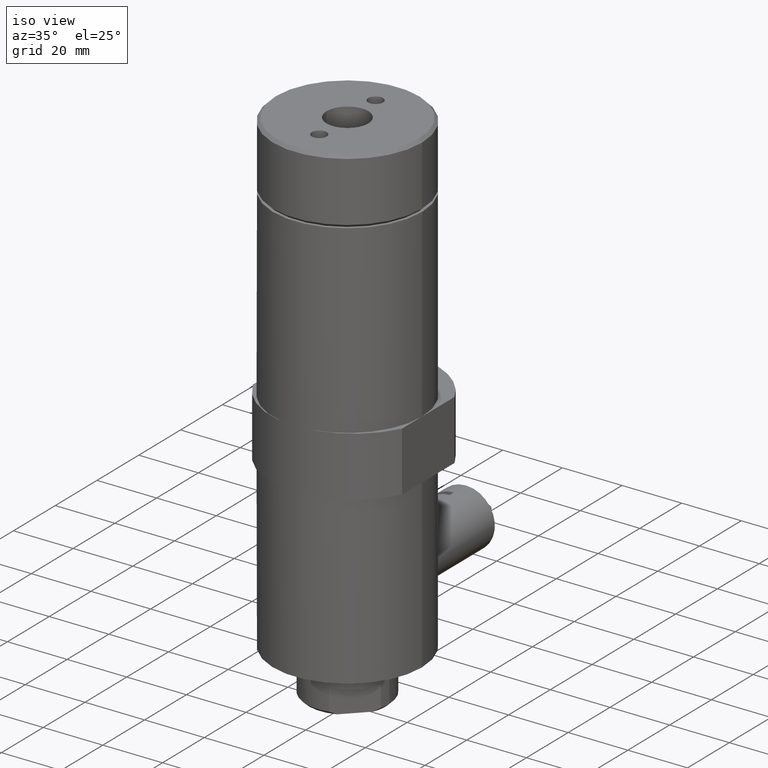
[diagram: clean part render]
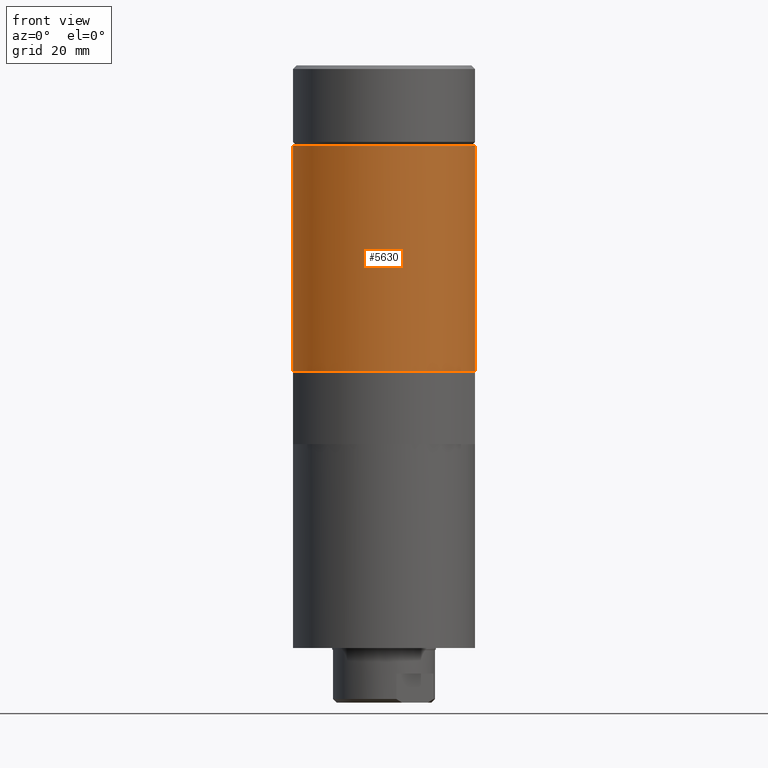
[diagram: tour spotlight — one face highlighted and labeled with its STEP entity id]
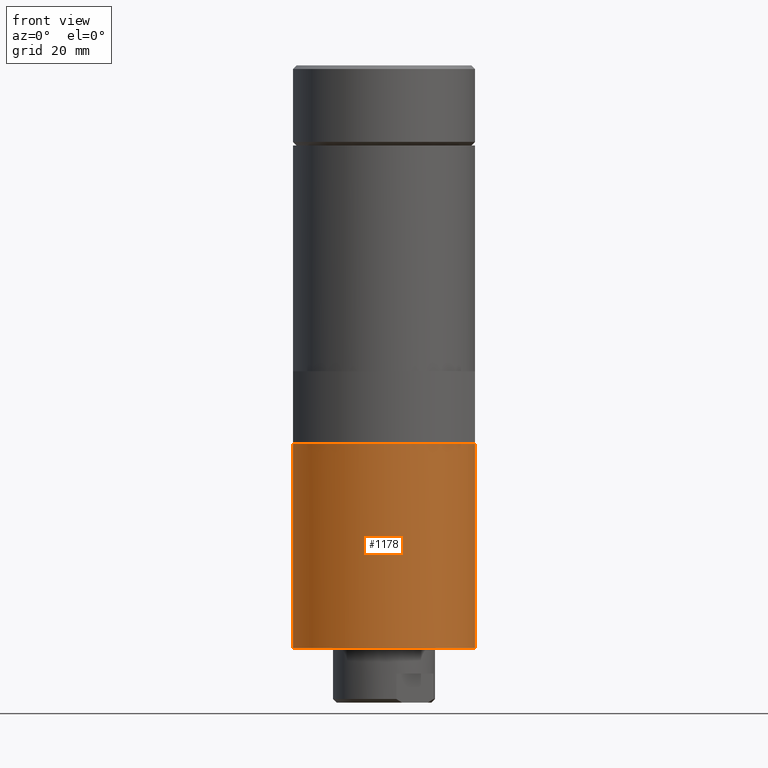
[diagram: tour spotlight — one face highlighted and labeled with its STEP entity id]
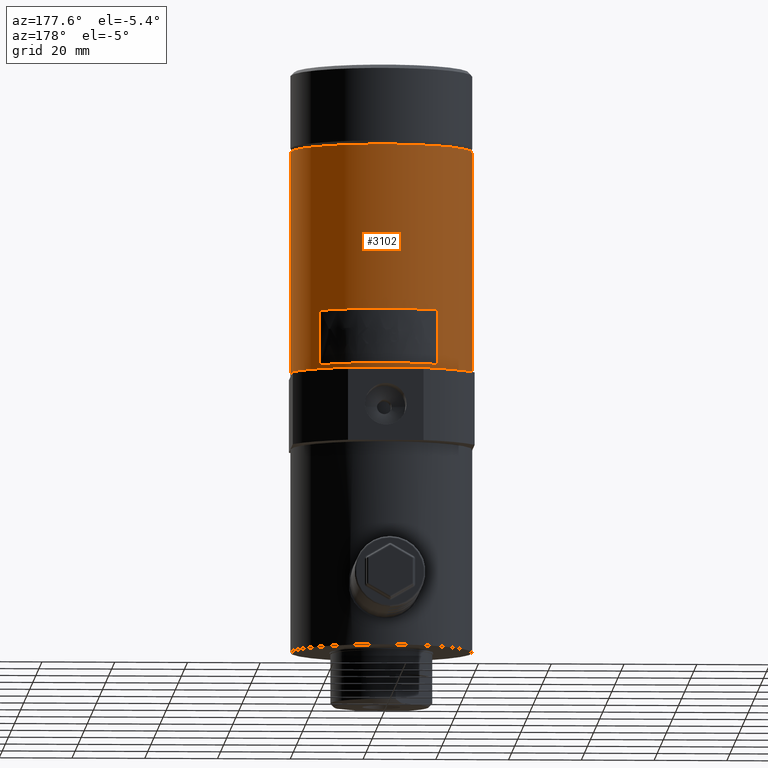
[diagram: tour spotlight — one face highlighted and labeled with its STEP entity id]
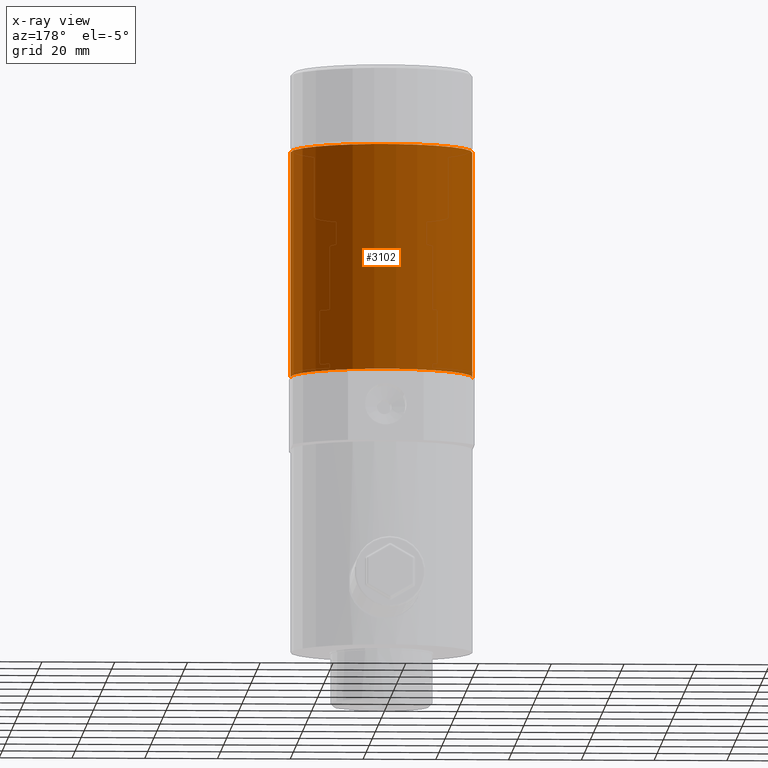
[diagram: x-ray of the same camera — body ghosted, this tour face saturated]
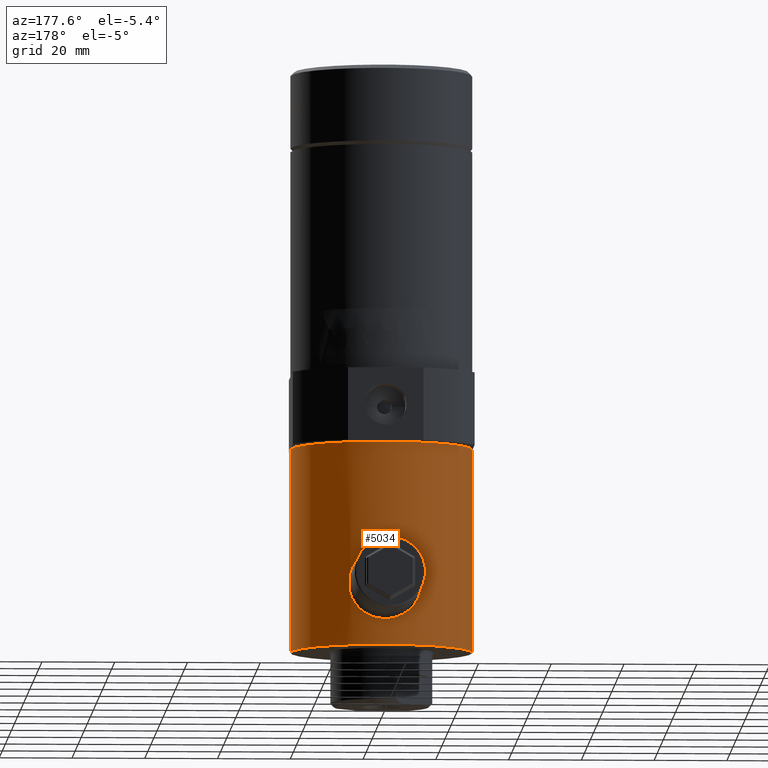
[diagram: tour spotlight — one face highlighted and labeled with its STEP entity id]
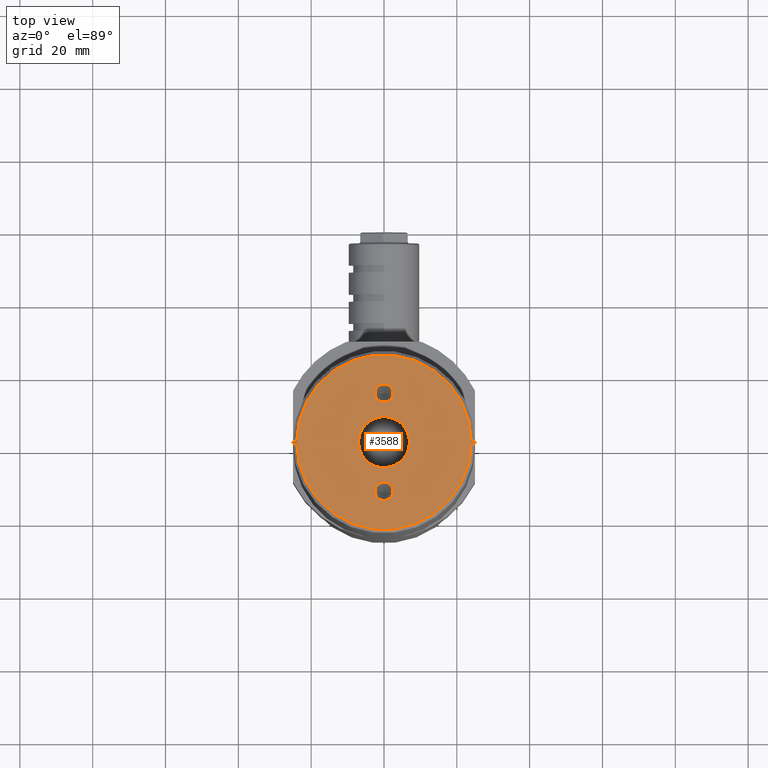
[diagram: tour spotlight — one face highlighted and labeled with its STEP entity id]
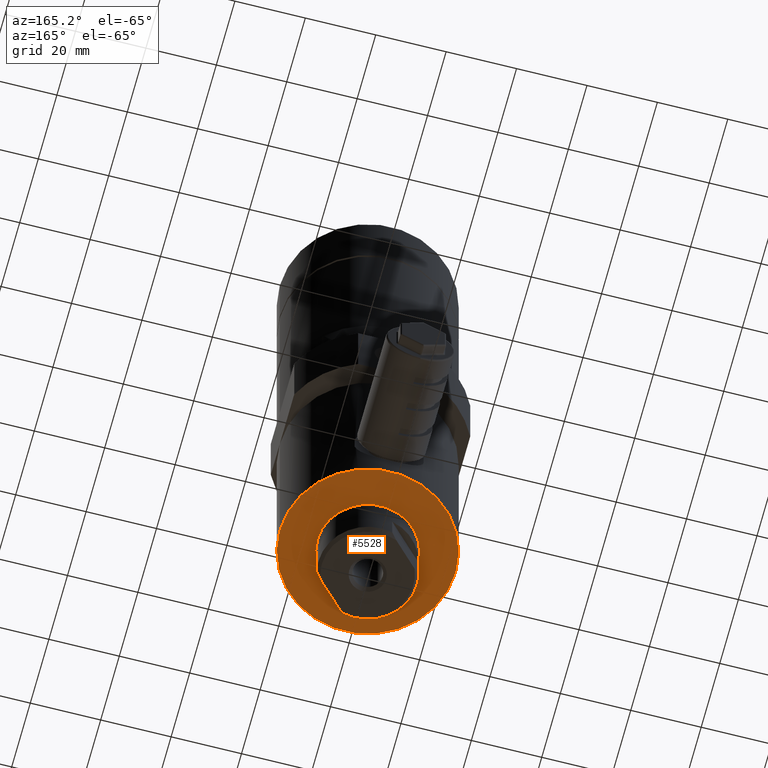
[diagram: tour spotlight — one face highlighted and labeled with its STEP entity id]
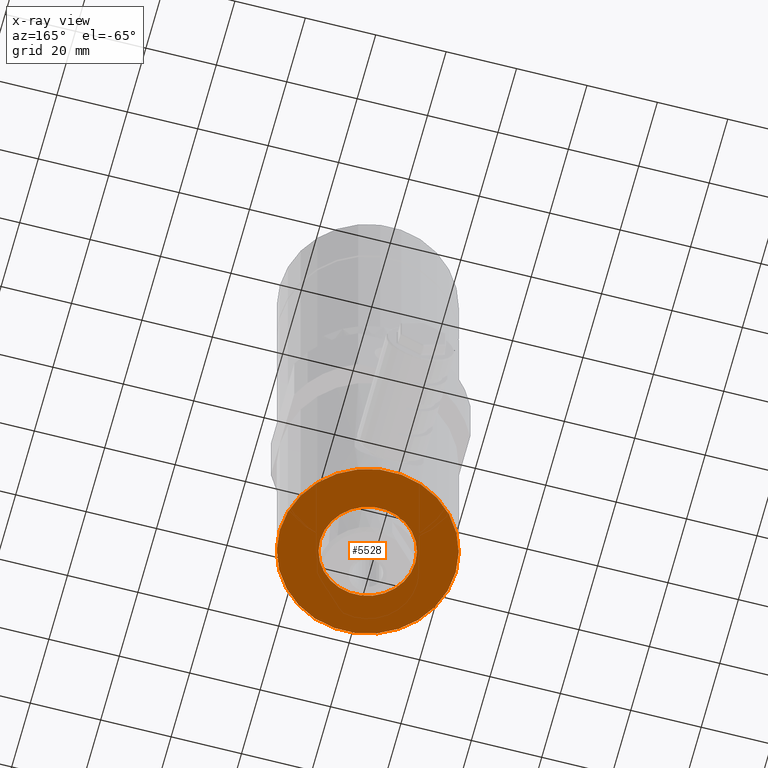
[diagram: x-ray of the same camera — body ghosted, this tour face saturated]
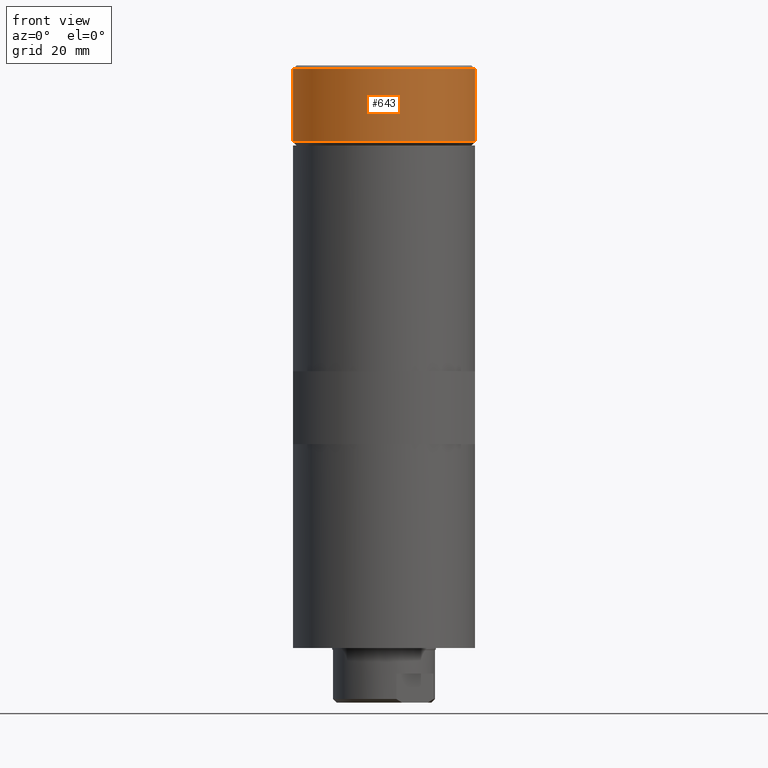
[diagram: tour spotlight — one face highlighted and labeled with its STEP entity id]
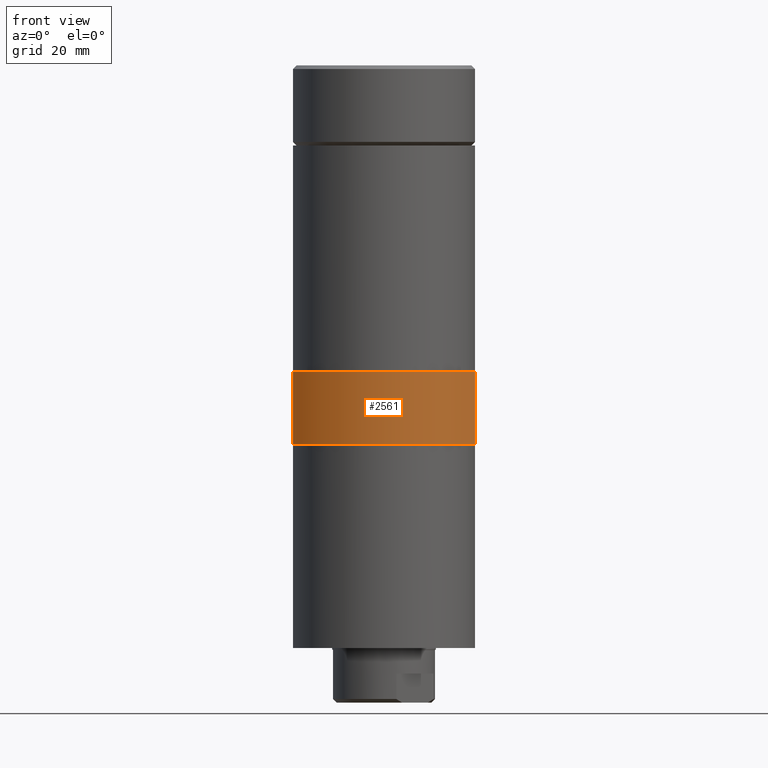
[diagram: tour spotlight — one face highlighted and labeled with its STEP entity id]
A machine part: a face-by-face anatomy tour. The part has 175 B-rep faces; the first image is the clean iso view, then the 8 largest visible faces are spotlighted one at a time (largest first), each with its STEP entity span.

Face 1 — front view, entity #5630. In plain terms, the highlighted cylindrical surface (partial cylindrical patch) has radius 25 mm, axis along (0, -0, -1).
Definition (entity closure, byte-faithful):
#143 = EDGE_CURVE ( 'NONE', #5518, #4903, #5746, .T. ) ;
#196 = CARTESIAN_POINT ( 'NONE',  ( 24.99999999999999600, 4.431921058997351700E-015, 143.5246831416290000 ) ) ;
#360 = ORIENTED_EDGE ( 'NONE', *, *, #143, .F. ) ;
#811 = ORIENTED_EDGE ( 'NONE', *, *, #3352, .F. ) ;
#861 = DIRECTION ( 'NONE',  ( -1.000000000000000000, -1.038109137218916000E-017, 0.0000000000000000000 ) ) ;
#962 = VECTOR ( 'NONE', #2105, 1000.000000000000000 ) ;
#1018 = ORIENTED_EDGE ( 'NONE', *, *, #6217, .T. ) ;
#1162 = CARTESIAN_POINT ( 'NONE',  ( -25.00000000000000400, 1.173063325057374600E-015, 143.5246831416290000 ) ) ;
#1210 = CARTESIAN_POINT ( 'NONE',  ( -3.552273647387004900E-015, 1.432590609362103800E-015, 143.5246831416290000 ) ) ;
#1476 = AXIS2_PLACEMENT_3D ( 'NONE', #5905, #6516, #861 ) ;
#1494 = ORIENTED_EDGE ( 'NONE', *, *, #2719, .F. ) ;
#1536 = DIRECTION ( 'NONE',  ( 2.574111338686239600E-017, -1.038109137218916000E-017, -1.000000000000000000 ) ) ;
#1762 = VERTEX_POINT ( 'NONE', #4373 ) ;
#2105 = DIRECTION ( 'NONE',  ( 2.574111338686239600E-017, -1.038109137218916000E-017, -1.000000000000000000 ) ) ;
#2225 = EDGE_CURVE ( 'NONE', #6563, #2282, #4779, .T. ) ;
#2269 = CARTESIAN_POINT ( 'NONE',  ( -1.956324617401539700E-015, 7.889629442863759800E-016, 81.52468314162909700 ) ) ;
#2282 = VERTEX_POINT ( 'NONE', #1162 ) ;
#2706 = DIRECTION ( 'NONE',  ( 2.574111338686239600E-017, -1.038109137218916000E-017, -1.000000000000000000 ) ) ;
#2719 = EDGE_CURVE ( 'NONE', #4903, #1762, #5480, .T. ) ;
#2799 = ORIENTED_EDGE ( 'NONE', *, *, #2225, .T. ) ;
#2962 = VECTOR ( 'NONE', #4568, 1000.000000000000000 ) ;
#3199 = CYLINDRICAL_SURFACE ( 'NONE', #3428, 25.00000000000000000 ) ;
#3352 = EDGE_CURVE ( 'NONE', #6563, #5518, #3551, .T. ) ;
#3428 = AXIS2_PLACEMENT_3D ( 'NONE', #5644, #1536, #4690 ) ;
#3513 = AXIS2_PLACEMENT_3D ( 'NONE', #2269, #2706, #4337 ) ;
#3551 = LINE ( 'NONE', #4688, #962 ) ;
#3804 = CARTESIAN_POINT ( 'NONE',  ( -1.696797333096809900E-015, -25.00000000000000000, 81.52468314162909700 ) ) ;
#3903 = EDGE_LOOP ( 'NONE', ( #811, #2799, #1018, #1494, #360 ) ) ;
#4167 = AXIS2_PLACEMENT_3D ( 'NONE', #1210, #6330, #6355 ) ;
#4324 = LINE ( 'NONE', #6149, #2962 ) ;
#4331 = FACE_OUTER_BOUND ( 'NONE', #3903, .T. ) ;
#4337 = DIRECTION ( 'NONE',  ( -1.000000000000000000, -1.038109137218916000E-017, 0.0000000000000000000 ) ) ;
#4373 = CARTESIAN_POINT ( 'NONE',  ( -25.00000000000000000, 5.294356599816469300E-016, 81.52468314162909700 ) ) ;
#4568 = DIRECTION ( 'NONE',  ( 2.574111338686239600E-017, -1.038109137218916000E-017, -1.000000000000000000 ) ) ;
#4600 = CARTESIAN_POINT ( 'NONE',  ( 25.00000000000000000, -1.749450861694065300E-015, 81.52468314162909700 ) ) ;
#4688 = CARTESIAN_POINT ( 'NONE',  ( 25.00000000000000000, 3.321144282173112400E-015, 5.524683141629100900 ) ) ;
#4690 = DIRECTION ( 'NONE',  ( -1.000000000000000000, -1.038109137218916000E-017, -3.469446951953614200E-017 ) ) ;
#4779 = CIRCLE ( 'NONE', #4167, 25.00000000000000000 ) ;
#4903 = VERTEX_POINT ( 'NONE', #3804 ) ;
#5480 = CIRCLE ( 'NONE', #3513, 25.00000000000000000 ) ;
#5518 = VERTEX_POINT ( 'NONE', #4600 ) ;
#5630 = ADVANCED_FACE ( 'NONE', ( #4331 ), #3199, .T. ) ;
#5644 = CARTESIAN_POINT ( 'NONE',  ( 0.0000000000000000000, 0.0000000000000000000, 5.524683141629100000 ) ) ;
#5746 = CIRCLE ( 'NONE', #1476, 25.00000000000000000 ) ;
#5905 = CARTESIAN_POINT ( 'NONE',  ( -1.956324617401539700E-015, 7.889629442863759800E-016, 81.52468314162909700 ) ) ;
#6149 = CARTESIAN_POINT ( 'NONE',  ( -25.00000000000000000, -2.595272843047290000E-016, 5.524683141629099100 ) ) ;
#6217 = EDGE_CURVE ( 'NONE', #2282, #1762, #4324, .T. ) ;
#6330 = DIRECTION ( 'NONE',  ( 2.574111338686239600E-017, -1.038109137218916000E-017, -1.000000000000000000 ) ) ;
#6355 = DIRECTION ( 'NONE',  ( -1.000000000000000000, -1.038109137218916400E-017, 0.0000000000000000000 ) ) ;
#6516 = DIRECTION ( 'NONE',  ( 2.574111338686239600E-017, -1.038109137218916000E-017, -1.000000000000000000 ) ) ;
#6563 = VERTEX_POINT ( 'NONE', #196 ) ;

Face 2 — front view, entity #1178. In plain terms, the highlighted cylindrical surface (partial cylindrical patch) has radius 25 mm, axis along (0, -0, -1).
Definition (entity closure, byte-faithful):
#28 = DIRECTION ( 'NONE',  ( -1.000000000000000000, -1.038109137218916000E-017, -3.469446951953614200E-017 ) ) ;
#113 = CARTESIAN_POINT ( 'NONE',  ( 25.00000000000000000, 3.321144282173112400E-015, 5.524683141629100900 ) ) ;
#247 = CARTESIAN_POINT ( 'NONE',  ( -1.441502349664292000E-015, 5.813411168425929900E-016, 61.52468314162910400 ) ) ;
#287 = EDGE_CURVE ( 'NONE', #3458, #3286, #4631, .T. ) ;
#435 = EDGE_CURVE ( 'NONE', #2085, #3286, #5910, .T. ) ;
#491 = DIRECTION ( 'NONE',  ( -1.000000000000000000, -1.038109137218916000E-017, -3.469446951953614200E-017 ) ) ;
#795 = DIRECTION ( 'NONE',  ( 2.574111338686239600E-017, -1.038109137218916000E-017, -1.000000000000000000 ) ) ;
#865 = EDGE_CURVE ( 'NONE', #5101, #2085, #2854, .T. ) ;
#929 = CARTESIAN_POINT ( 'NONE',  ( -25.00000000000000000, -2.595272843047290000E-016, 5.524683141629099100 ) ) ;
#1008 = EDGE_LOOP ( 'NONE', ( #2126, #4540, #1386, #3329, #1989 ) ) ;
#1178 = ADVANCED_FACE ( 'NONE', ( #3663 ), #2211, .T. ) ;
#1261 = CIRCLE ( 'NONE', #3072, 25.00000000000000000 ) ;
#1386 = ORIENTED_EDGE ( 'NONE', *, *, #5956, .T. ) ;
#1432 = EDGE_CURVE ( 'NONE', #5101, #4361, #4697, .T. ) ;
#1807 = CARTESIAN_POINT ( 'NONE',  ( -25.00000000000000000, 3.218138325378639900E-016, 61.52468314162910400 ) ) ;
#1989 = ORIENTED_EDGE ( 'NONE', *, *, #435, .F. ) ;
#2085 = VERTEX_POINT ( 'NONE', #4039 ) ;
#2115 = DIRECTION ( 'NONE',  ( 2.574111338686239600E-017, -1.038109137218916000E-017, -1.000000000000000000 ) ) ;
#2126 = ORIENTED_EDGE ( 'NONE', *, *, #865, .F. ) ;
#2211 = CYLINDRICAL_SURFACE ( 'NONE', #2826, 25.00000000000000000 ) ;
#2524 = AXIS2_PLACEMENT_3D ( 'NONE', #247, #795, #5900 ) ;
#2530 = DIRECTION ( 'NONE',  ( 2.574111338686239600E-017, -1.038109137218916000E-017, -1.000000000000000000 ) ) ;
#2767 = VECTOR ( 'NONE', #4258, 1000.000000000000000 ) ;
#2826 = AXIS2_PLACEMENT_3D ( 'NONE', #4583, #5079, #491 ) ;
#2854 = LINE ( 'NONE', #113, #2767 ) ;
#3072 = AXIS2_PLACEMENT_3D ( 'NONE', #3686, #2115, #4159 ) ;
#3075 = CARTESIAN_POINT ( 'NONE',  ( 25.00000000000000000, -1.957072689137849900E-015, 61.52468314162910400 ) ) ;
#3286 = VERTEX_POINT ( 'NONE', #3870 ) ;
#3329 = ORIENTED_EDGE ( 'NONE', *, *, #287, .T. ) ;
#3458 = VERTEX_POINT ( 'NONE', #1807 ) ;
#3663 = FACE_OUTER_BOUND ( 'NONE', #1008, .T. ) ;
#3686 = CARTESIAN_POINT ( 'NONE',  ( -1.441502349664292000E-015, 5.813411168425929900E-016, 61.52468314162910400 ) ) ;
#3870 = CARTESIAN_POINT ( 'NONE',  ( -25.00000000000000000, -2.595272843047289600E-016, 5.524683141629099100 ) ) ;
#4039 = CARTESIAN_POINT ( 'NONE',  ( 25.00000000000000000, 3.611814840594408800E-015, 5.524683141629100900 ) ) ;
#4159 = DIRECTION ( 'NONE',  ( -1.000000000000000000, -1.038109137218916000E-017, 0.0000000000000000000 ) ) ;
#4258 = DIRECTION ( 'NONE',  ( 2.574111338686239600E-017, -1.038109137218916000E-017, -1.000000000000000000 ) ) ;
#4361 = VERTEX_POINT ( 'NONE', #6480 ) ;
#4540 = ORIENTED_EDGE ( 'NONE', *, *, #1432, .T. ) ;
#4583 = CARTESIAN_POINT ( 'NONE',  ( 0.0000000000000000000, 0.0000000000000000000, 5.524683141629100000 ) ) ;
#4625 = AXIS2_PLACEMENT_3D ( 'NONE', #6201, #2530, #28 ) ;
#4631 = LINE ( 'NONE', #929, #6162 ) ;
#4697 = CIRCLE ( 'NONE', #2524, 25.00000000000000000 ) ;
#5079 = DIRECTION ( 'NONE',  ( 2.574111338686239600E-017, -1.038109137218916000E-017, -1.000000000000000000 ) ) ;
#5101 = VERTEX_POINT ( 'NONE', #3075 ) ;
#5900 = DIRECTION ( 'NONE',  ( -1.000000000000000000, -1.038109137218916000E-017, 0.0000000000000000000 ) ) ;
#5910 = CIRCLE ( 'NONE', #4625, 25.00000000000000000 ) ;
#5956 = EDGE_CURVE ( 'NONE', #4361, #3458, #1261, .T. ) ;
#6162 = VECTOR ( 'NONE', #6559, 1000.000000000000000 ) ;
#6201 = CARTESIAN_POINT ( 'NONE',  ( -1.134818316288499700E-031, 4.576590163437660600E-032, 5.524683141629100000 ) ) ;
#6480 = CARTESIAN_POINT ( 'NONE',  ( -1.181975065359564000E-015, -25.00000000000000000, 61.52468314162910400 ) ) ;
#6559 = DIRECTION ( 'NONE',  ( 2.574111338686239600E-017, -1.038109137218916000E-017, -1.000000000000000000 ) ) ;

Face 3 — auxiliary view, entity #3102. An x-ray twin of the same camera follows (body ghosted, this face saturated) — the face is partly hidden behind the body. In plain terms, the highlighted cylindrical surface (partial cylindrical patch) has radius 25 mm, axis along (0, -0, -1).
Definition (entity closure, byte-faithful):
#196 = CARTESIAN_POINT ( 'NONE',  ( 24.99999999999999600, 4.431921058997351700E-015, 143.5246831416290000 ) ) ;
#681 = ORIENTED_EDGE ( 'NONE', *, *, #4278, .T. ) ;
#786 = CARTESIAN_POINT ( 'NONE',  ( -3.552273647387004900E-015, 1.432590609362103800E-015, 143.5246831416290000 ) ) ;
#799 = ORIENTED_EDGE ( 'NONE', *, *, #6217, .F. ) ;
#962 = VECTOR ( 'NONE', #2105, 1000.000000000000000 ) ;
#970 = ORIENTED_EDGE ( 'NONE', *, *, #3352, .T. ) ;
#1162 = CARTESIAN_POINT ( 'NONE',  ( -25.00000000000000400, 1.173063325057374600E-015, 143.5246831416290000 ) ) ;
#1623 = DIRECTION ( 'NONE',  ( 2.574111338686239600E-017, -1.038109137218916000E-017, -1.000000000000000000 ) ) ;
#1655 = AXIS2_PLACEMENT_3D ( 'NONE', #786, #3929, #2860 ) ;
#1762 = VERTEX_POINT ( 'NONE', #4373 ) ;
#1966 = DIRECTION ( 'NONE',  ( -1.000000000000000000, -1.038109137218916000E-017, 0.0000000000000000000 ) ) ;
#2105 = DIRECTION ( 'NONE',  ( 2.574111338686239600E-017, -1.038109137218916000E-017, -1.000000000000000000 ) ) ;
#2282 = VERTEX_POINT ( 'NONE', #1162 ) ;
#2819 = CYLINDRICAL_SURFACE ( 'NONE', #4464, 25.00000000000000000 ) ;
#2860 = DIRECTION ( 'NONE',  ( -1.000000000000000000, -1.038109137218916400E-017, 0.0000000000000000000 ) ) ;
#2900 = CIRCLE ( 'NONE', #1655, 25.00000000000000000 ) ;
#2962 = VECTOR ( 'NONE', #4568, 1000.000000000000000 ) ;
#3102 = ADVANCED_FACE ( 'NONE', ( #5393 ), #2819, .T. ) ;
#3142 = CARTESIAN_POINT ( 'NONE',  ( 0.0000000000000000000, 0.0000000000000000000, 5.524683141629100000 ) ) ;
#3352 = EDGE_CURVE ( 'NONE', #6563, #5518, #3551, .T. ) ;
#3551 = LINE ( 'NONE', #4688, #962 ) ;
#3612 = CIRCLE ( 'NONE', #6271, 25.00000000000000000 ) ;
#3929 = DIRECTION ( 'NONE',  ( 2.574111338686239600E-017, -1.038109137218916000E-017, -1.000000000000000000 ) ) ;
#4278 = EDGE_CURVE ( 'NONE', #2282, #6563, #2900, .T. ) ;
#4324 = LINE ( 'NONE', #6149, #2962 ) ;
#4373 = CARTESIAN_POINT ( 'NONE',  ( -25.00000000000000000, 5.294356599816469300E-016, 81.52468314162909700 ) ) ;
#4464 = AXIS2_PLACEMENT_3D ( 'NONE', #3142, #1623, #5759 ) ;
#4568 = DIRECTION ( 'NONE',  ( 2.574111338686239600E-017, -1.038109137218916000E-017, -1.000000000000000000 ) ) ;
#4600 = CARTESIAN_POINT ( 'NONE',  ( 25.00000000000000000, -1.749450861694065300E-015, 81.52468314162909700 ) ) ;
#4688 = CARTESIAN_POINT ( 'NONE',  ( 25.00000000000000000, 3.321144282173112400E-015, 5.524683141629100900 ) ) ;
#5201 = ORIENTED_EDGE ( 'NONE', *, *, #6663, .F. ) ;
#5393 = FACE_OUTER_BOUND ( 'NONE', #6098, .T. ) ;
#5493 = DIRECTION ( 'NONE',  ( 2.574111338686239600E-017, -1.038109137218916000E-017, -1.000000000000000000 ) ) ;
#5518 = VERTEX_POINT ( 'NONE', #4600 ) ;
#5759 = DIRECTION ( 'NONE',  ( -1.000000000000000000, -1.038109137218916000E-017, -3.469446951953614200E-017 ) ) ;
#6013 = CARTESIAN_POINT ( 'NONE',  ( -1.956324617401539700E-015, 7.889629442863759800E-016, 81.52468314162909700 ) ) ;
#6098 = EDGE_LOOP ( 'NONE', ( #681, #970, #5201, #799 ) ) ;
#6149 = CARTESIAN_POINT ( 'NONE',  ( -25.00000000000000000, -2.595272843047290000E-016, 5.524683141629099100 ) ) ;
#6217 = EDGE_CURVE ( 'NONE', #2282, #1762, #4324, .T. ) ;
#6271 = AXIS2_PLACEMENT_3D ( 'NONE', #6013, #5493, #1966 ) ;
#6563 = VERTEX_POINT ( 'NONE', #196 ) ;
#6663 = EDGE_CURVE ( 'NONE', #1762, #5518, #3612, .T. ) ;

Face 4 — auxiliary view, entity #5034. In plain terms, the highlighted cylindrical surface (partial cylindrical patch) has radius 25 mm, axis along (0, -0, -1).
Definition (entity closure, byte-faithful):
#9 = VERTEX_POINT ( 'NONE', #2186 ) ;
#17 = ORIENTED_EDGE ( 'NONE', *, *, #3376, .F. ) ;
#20 = CARTESIAN_POINT ( 'NONE',  ( -7.180227548585589800, 23.94762746834679100, 29.59062538006328700 ) ) ;
#22 = CARTESIAN_POINT ( 'NONE',  ( 8.259692838068847500, 23.59823547132035100, 16.95860746401800500 ) ) ;
#42 = CARTESIAN_POINT ( 'NONE',  ( 1.146886305113929100, 24.98011076118663000, 32.57526533896596300 ) ) ;
#72 = CARTESIAN_POINT ( 'NONE',  ( -8.847161488890863600, 23.38429204067452400, 17.92913264439845000 ) ) ;
#83 = VECTOR ( 'NONE', #679, 1000.000000000000000 ) ;
#104 = VECTOR ( 'NONE', #5510, 1000.000000000000000 ) ;
#113 = CARTESIAN_POINT ( 'NONE',  ( 25.00000000000000000, 3.321144282173112400E-015, 5.524683141629100900 ) ) ;
#115 = CARTESIAN_POINT ( 'NONE',  ( -2.833644764280972800, 24.84047182930535400, 13.03022380450460300 ) ) ;
#162 = CARTESIAN_POINT ( 'NONE',  ( 4.438922484611063100, 24.60792885478893400, 31.60348261887979100 ) ) ;
#240 = CIRCLE ( 'NONE', #3115, 25.00000000000000000 ) ;
#287 = EDGE_CURVE ( 'NONE', #3458, #3286, #4631, .T. ) ;
#295 = FACE_BOUND ( 'NONE', #3101, .T. ) ;
#317 = CARTESIAN_POINT ( 'NONE',  ( 9.797958971132709700, 23.00000000000000000, 24.62468314162915200 ) ) ;
#373 = FACE_OUTER_BOUND ( 'NONE', #2980, .T. ) ;
#521 = CARTESIAN_POINT ( 'NONE',  ( 8.851705622959688200, 23.38261214457427100, 17.93701347236638100 ) ) ;
#588 = CARTESIAN_POINT ( 'NONE',  ( -5.902059548865209700, 24.29758526470848800, 30.71724903266104400 ) ) ;
#590 = CARTESIAN_POINT ( 'NONE',  ( -8.260714119725184500, 23.59783852148837000, 16.96066838928870300 ) ) ;
#609 = CARTESIAN_POINT ( 'NONE',  ( -7.922048104249360500, 23.71480993135423900, 16.49601389999548600 ) ) ;
#651 = CARTESIAN_POINT ( 'NONE',  ( -6.777412310694632700, 24.06805564762696300, 15.24994126200008900 ) ) ;
#672 = CARTESIAN_POINT ( 'NONE',  ( 3.922113436032247200, 24.69645131928564700, 31.84135239845372600 ) ) ;
#679 = DIRECTION ( 'NONE',  ( -2.574111338686239600E-017, 1.038109137218916000E-017, 1.000000000000000000 ) ) ;
#717 = ORIENTED_EDGE ( 'NONE', *, *, #1886, .T. ) ;
#819 = EDGE_CURVE ( 'NONE', #9, #2384, #2209, .T. ) ;
#865 = EDGE_CURVE ( 'NONE', #5101, #2085, #2854, .T. ) ;
#929 = CARTESIAN_POINT ( 'NONE',  ( -25.00000000000000000, -2.595272843047290000E-016, 5.524683141629099100 ) ) ;
#934 = ORIENTED_EDGE ( 'NONE', *, *, #1340, .T. ) ;
#1034 = CARTESIAN_POINT ( 'NONE',  ( 7.373630084619409600, 23.88863738246133300, 15.86384964432156700 ) ) ;
#1057 = CARTESIAN_POINT ( 'NONE',  ( -5.436311019048124700, 24.40692558506239300, 31.03695901991806100 ) ) ;
#1076 = CARTESIAN_POINT ( 'NONE',  ( 2.833644764280931000, 24.84047182930536800, 32.21914247875361100 ) ) ;
#1078 = CARTESIAN_POINT ( 'NONE',  ( 3.661623491478006400, 24.73191140605195700, 13.31470911526254900 ) ) ;
#1100 = CARTESIAN_POINT ( 'NONE',  ( -1.995115453326816700, 24.92187462426129600, 12.82152686961137500 ) ) ;
#1149 = CIRCLE ( 'NONE', #2386, 25.00000000000000000 ) ;
#1186 = CARTESIAN_POINT ( 'NONE',  ( 9.515536674796061700, 23.11936570520877900, 25.75193791274480000 ) ) ;
#1340 = EDGE_CURVE ( 'NONE', #3458, #5101, #1149, .T. ) ;
#1503 = CARTESIAN_POINT ( 'NONE',  ( 9.103965942516495600, 23.28449456403809500, 18.44846266826031200 ) ) ;
#1547 = CARTESIAN_POINT ( 'NONE',  ( 7.180227548585556900, 23.94762746834680200, 15.65874090319488400 ) ) ;
#1566 = CARTESIAN_POINT ( 'NONE',  ( -6.562123964599557300, 24.12447446529686700, 30.17580964553494400 ) ) ;
#1612 = CARTESIAN_POINT ( 'NONE',  ( -2.848018668903570500, 24.84327883396558100, 32.22787019184480100 ) ) ;
#1634 = CARTESIAN_POINT ( 'NONE',  ( 7.181038849551722300, 23.94960829089960100, 29.60695454000768500 ) ) ;
#1659 = CARTESIAN_POINT ( 'NONE',  ( 1.164481538372214200, 24.97452029611819300, 12.68852681830799500 ) ) ;
#1676 = DIRECTION ( 'NONE',  ( 2.574111338686239600E-017, -1.038109137218916000E-017, -1.000000000000000000 ) ) ;
#1807 = CARTESIAN_POINT ( 'NONE',  ( -25.00000000000000000, 3.218138325378639900E-016, 61.52468314162910400 ) ) ;
#1867 = CARTESIAN_POINT ( 'NONE',  ( -1.441502349664292000E-015, 5.813411168425929900E-016, 61.52468314162910400 ) ) ;
#1886 = EDGE_CURVE ( 'NONE', #9, #2001, #5091, .T. ) ;
#2001 = VERTEX_POINT ( 'NONE', #2995 ) ;
#2074 = CARTESIAN_POINT ( 'NONE',  ( -9.681726321470096200, 23.04951490141306200, 25.19410450787927000 ) ) ;
#2085 = VERTEX_POINT ( 'NONE', #4039 ) ;
#2102 = CARTESIAN_POINT ( 'NONE',  ( -8.259692838068874100, 23.59823547132034300, 28.29075881924015700 ) ) ;
#2145 = CARTESIAN_POINT ( 'NONE',  ( 3.111231520536201300, 24.80714934889455800, 32.13271816072332100 ) ) ;
#2148 = CARTESIAN_POINT ( 'NONE',  ( 2.848018668903523400, 24.84327883396558100, 13.02149609141338300 ) ) ;
#2169 = CARTESIAN_POINT ( 'NONE',  ( -2.275925479487644700, 24.89776589504506200, 12.88284779947250200 ) ) ;
#2186 = CARTESIAN_POINT ( 'NONE',  ( -9.797958971132709700, 23.00000000000000000, 24.62468314162909900 ) ) ;
#2209 = B_SPLINE_CURVE_WITH_KNOTS ( 'NONE', 3,
 ( #6237, #2074, #5662, #3672, #2582, #2102, #6259, #6194, #20, #4143, #1566, #588, #1057, #4684, #4190, #4704, #5202, #1612, #4664, #5177, #3134, #5684, #2607, #5224, #42, #4168, #3657, #1076, #2145, #672, #162, #2715, #2763, #4279, #1634, #6328, #3243, #3762, #3293, #1186, #4301, #5264 ),
 .UNSPECIFIED., .F., .F.,
 ( 4, 2, 2, 2, 2, 2, 2, 2, 2, 2, 2, 2, 2, 2, 2, 2, 2, 2, 2, 2, 4 ),
 ( 0.0000000000000000000, 0.001723155609128465200, 0.003446311218256930400, 0.005169466827385394700, 0.006031044631949632500, 0.006892622436513869500, 0.008615778045642334700, 0.009477355850206571600, 0.01033893365477080500, 0.01206208926389927700, 0.01292366706846351600, 0.01378524487302775500, 0.01550840048215623400, 0.01636997828672047400, 0.01723155609128471800, 0.01895471170041319500, 0.02067786730954167300, 0.02240102291867015300, 0.02412417852779863400, 0.02584733413692711500, 0.02757048974605559600 ),
 .UNSPECIFIED. ) ;
#2338 = DIRECTION ( 'NONE',  ( -1.000000000000000000, -1.038109137218916000E-017, 0.0000000000000000000 ) ) ;
#2384 = VERTEX_POINT ( 'NONE', #317 ) ;
#2386 = AXIS2_PLACEMENT_3D ( 'NONE', #1867, #2872, #2338 ) ;
#2393 = ORIENTED_EDGE ( 'NONE', *, *, #4771, .F. ) ;
#2582 = CARTESIAN_POINT ( 'NONE',  ( -8.851705622959711300, 23.38261214457426400, 27.31235281089178100 ) ) ;
#2607 = CARTESIAN_POINT ( 'NONE',  ( -0.2980990031230042500, 24.99991173564230700, 32.62446248068311400 ) ) ;
#2652 = CARTESIAN_POINT ( 'NONE',  ( -4.438922484611107500, 24.60792885478892700, 13.64588366437843400 ) ) ;
#2670 = CARTESIAN_POINT ( 'NONE',  ( -7.181038849551756100, 23.94960829089959700, 15.64241174325055000 ) ) ;
#2715 = CARTESIAN_POINT ( 'NONE',  ( 5.427451602036910600, 24.40895254725786100, 31.04285645800895900 ) ) ;
#2763 = CARTESIAN_POINT ( 'NONE',  ( 5.902286777497954200, 24.29748199058076400, 30.71684887253711300 ) ) ;
#2767 = VECTOR ( 'NONE', #4258, 1000.000000000000000 ) ;
#2854 = LINE ( 'NONE', #113, #2767 ) ;
#2872 = DIRECTION ( 'NONE',  ( 2.574111338686239600E-017, -1.038109137218916000E-017, -1.000000000000000000 ) ) ;
#2980 = EDGE_LOOP ( 'NONE', ( #934, #3119, #2393, #6659 ) ) ;
#2995 = CARTESIAN_POINT ( 'NONE',  ( -9.797958971132709700, 23.00000000000000000, 20.62468314162909900 ) ) ;
#3073 = CYLINDRICAL_SURFACE ( 'NONE', #3945, 25.00000000000000000 ) ;
#3075 = CARTESIAN_POINT ( 'NONE',  ( 25.00000000000000000, -1.957072689137849900E-015, 61.52468314162910400 ) ) ;
#3101 = EDGE_LOOP ( 'NONE', ( #17, #4891, #5234, #717 ) ) ;
#3107 = CARTESIAN_POINT ( 'NONE',  ( 9.797958971132709700, 23.00000000000000000, 20.62468314162904900 ) ) ;
#3115 = AXIS2_PLACEMENT_3D ( 'NONE', #3691, #1676, #5743 ) ;
#3119 = ORIENTED_EDGE ( 'NONE', *, *, #865, .T. ) ;
#3134 = CARTESIAN_POINT ( 'NONE',  ( -1.164481538372260000, 24.97452029611819300, 32.56083946495019900 ) ) ;
#3136 = CARTESIAN_POINT ( 'NONE',  ( 3.928597000416860700, 24.69079092088108900, 13.42427624050015700 ) ) ;
#3179 = CARTESIAN_POINT ( 'NONE',  ( -3.111231520536247500, 24.80714934889454400, 13.11664812253488900 ) ) ;
#3243 = CARTESIAN_POINT ( 'NONE',  ( 8.260714119725163200, 23.59783852148837700, 28.28869789396952300 ) ) ;
#3286 = VERTEX_POINT ( 'NONE', #3870 ) ;
#3293 = CARTESIAN_POINT ( 'NONE',  ( 9.098361610862154300, 23.28669845251925400, 26.81335555790189300 ) ) ;
#3376 = EDGE_CURVE ( 'NONE', #6173, #2001, #4220, .T. ) ;
#3436 = CARTESIAN_POINT ( 'NONE',  ( -9.797958971132709700, 23.00000000000000000, 5.524683141629100000 ) ) ;
#3458 = VERTEX_POINT ( 'NONE', #1807 ) ;
#3637 = CARTESIAN_POINT ( 'NONE',  ( 5.902059548865167900, 24.29758526470849100, 14.53211725059712700 ) ) ;
#3657 = CARTESIAN_POINT ( 'NONE',  ( 2.275925479487600700, 24.89776589504506200, 32.36651848378571800 ) ) ;
#3672 = CARTESIAN_POINT ( 'NONE',  ( -9.103965942516516900, 23.28449456403808800, 26.80090361499785700 ) ) ;
#3676 = CARTESIAN_POINT ( 'NONE',  ( -9.681719729429309100, 23.04951770961067900, 20.05522948110634100 ) ) ;
#3691 = CARTESIAN_POINT ( 'NONE',  ( -1.134818316288499700E-031, 4.576590163437660600E-032, 5.524683141629100000 ) ) ;
#3695 = CARTESIAN_POINT ( 'NONE',  ( 0.2980990031229568400, 24.99991173564230700, 12.62490380257509200 ) ) ;
#3717 = CARTESIAN_POINT ( 'NONE',  ( -9.515536674796072300, 23.11936570520877200, 19.49742837051344700 ) ) ;
#3762 = CARTESIAN_POINT ( 'NONE',  ( 8.847161488890849400, 23.38429204067452700, 27.32023363885978300 ) ) ;
#3764 = CARTESIAN_POINT ( 'NONE',  ( -9.098361610862175700, 23.28669845251924300, 18.43601072535635100 ) ) ;
#3860 = EDGE_CURVE ( 'NONE', #6173, #2384, #5634, .T. ) ;
#3870 = CARTESIAN_POINT ( 'NONE',  ( -25.00000000000000000, -2.595272843047289600E-016, 5.524683141629099100 ) ) ;
#3945 = AXIS2_PLACEMENT_3D ( 'NONE', #5523, #4052, #6088 ) ;
#4039 = CARTESIAN_POINT ( 'NONE',  ( 25.00000000000000000, 3.611814840594408800E-015, 5.524683141629100900 ) ) ;
#4052 = DIRECTION ( 'NONE',  ( 2.574111338686239600E-017, -1.038109137218916000E-017, -1.000000000000000000 ) ) ;
#4143 = CARTESIAN_POINT ( 'NONE',  ( -6.774960967346665100, 24.06541985719580600, 29.98538438604854800 ) ) ;
#4145 = CARTESIAN_POINT ( 'NONE',  ( 6.562123964599520000, 24.12447446529688500, 15.07355663772322400 ) ) ;
#4168 = CARTESIAN_POINT ( 'NONE',  ( 1.995115453326771000, 24.92187462426130300, 32.42783941364682200 ) ) ;
#4170 = CARTESIAN_POINT ( 'NONE',  ( 4.698934092334058100, 24.55570996527183800, 13.79292317359513700 ) ) ;
#4190 = CARTESIAN_POINT ( 'NONE',  ( -4.446646555554409900, 24.60277149225924700, 31.58619506473680300 ) ) ;
#4194 = CARTESIAN_POINT ( 'NONE',  ( 9.797958971132709700, 23.00000000000000000, 20.62468314162904900 ) ) ;
#4220 = B_SPLINE_CURVE_WITH_KNOTS ( 'NONE', 3,
 ( #3107, #4595, #5710, #1503, #521, #22, #6171, #1034, #1547, #5664, #4145, #3637, #4665, #4170, #5179, #3136, #1078, #2148, #5265, #4730, #1659, #5251, #3695, #6239, #5776, #1100, #2169, #115, #3179, #6282, #2652, #5725, #6260, #651, #2670, #609, #590, #72, #3764, #3717, #3676, #4282 ),
 .UNSPECIFIED., .F., .F.,
 ( 4, 2, 2, 2, 2, 2, 2, 2, 2, 2, 2, 2, 2, 2, 2, 2, 2, 2, 2, 2, 4 ),
 ( 0.0000000000000000000, 0.001723155609128474700, 0.003446311218256949500, 0.005169466827385424200, 0.006031044631949662000, 0.006892622436513900700, 0.008615778045642378000, 0.009477355850206616700, 0.01033893365477085500, 0.01206208926389933100, 0.01292366706846356800, 0.01378524487302780700, 0.01550840048215628000, 0.01636997828672051900, 0.01723155609128475600, 0.01895471170041323300, 0.02067786730954171100, 0.02240102291867018800, 0.02412417852779866900, 0.02584733413692714300, 0.02757048974605562000 ),
 .UNSPECIFIED. ) ;
#4258 = DIRECTION ( 'NONE',  ( 2.574111338686239600E-017, -1.038109137218916000E-017, -1.000000000000000000 ) ) ;
#4279 = CARTESIAN_POINT ( 'NONE',  ( 6.777412310694598000, 24.06805564762697400, 29.99942502125814100 ) ) ;
#4282 = CARTESIAN_POINT ( 'NONE',  ( -9.797958971132709700, 23.00000000000000000, 20.62468314162909900 ) ) ;
#4301 = CARTESIAN_POINT ( 'NONE',  ( 9.681719729429298500, 23.04951770961067200, 25.19413680215190600 ) ) ;
#4595 = CARTESIAN_POINT ( 'NONE',  ( 9.681726321470092600, 23.04951490141306200, 20.05526177537889200 ) ) ;
#4631 = LINE ( 'NONE', #929, #6162 ) ;
#4664 = CARTESIAN_POINT ( 'NONE',  ( -2.294858333376283500, 24.90086502607663700, 32.37462509035994900 ) ) ;
#4665 = CARTESIAN_POINT ( 'NONE',  ( 5.436311019048082100, 24.40692558506240300, 14.21240726334011000 ) ) ;
#4684 = CARTESIAN_POINT ( 'NONE',  ( -4.698934092334102500, 24.55570996527181600, 31.45644310966303800 ) ) ;
#4704 = CARTESIAN_POINT ( 'NONE',  ( -3.928597000416905100, 24.69079092088108500, 31.82509004275804200 ) ) ;
#4730 = CARTESIAN_POINT ( 'NONE',  ( 1.449089379632862300, 24.95956737253519700, 12.72609356213307500 ) ) ;
#4771 = EDGE_CURVE ( 'NONE', #3286, #2085, #240, .T. ) ;
#4782 = CARTESIAN_POINT ( 'NONE',  ( 9.797958971132709700, 23.00000000000000000, 5.524683141629100000 ) ) ;
#4891 = ORIENTED_EDGE ( 'NONE', *, *, #3860, .T. ) ;
#5034 = ADVANCED_FACE ( 'NONE', ( #295, #373 ), #3073, .T. ) ;
#5091 = LINE ( 'NONE', #3436, #104 ) ;
#5101 = VERTEX_POINT ( 'NONE', #3075 ) ;
#5177 = CARTESIAN_POINT ( 'NONE',  ( -1.449089379632906700, 24.95956737253519700, 32.52327272112513200 ) ) ;
#5179 = CARTESIAN_POINT ( 'NONE',  ( 4.446646555554363700, 24.60277149225926500, 13.66317121852137400 ) ) ;
#5202 = CARTESIAN_POINT ( 'NONE',  ( -3.661623491478051700, 24.73191140605196000, 31.93465716799564200 ) ) ;
#5224 = CARTESIAN_POINT ( 'NONE',  ( 0.5737084192911519100, 25.00017315683851400, 32.62511603382789400 ) ) ;
#5234 = ORIENTED_EDGE ( 'NONE', *, *, #819, .F. ) ;
#5251 = CARTESIAN_POINT ( 'NONE',  ( 0.5897485581926349400, 24.99469699581370500, 12.63792108514686100 ) ) ;
#5264 = CARTESIAN_POINT ( 'NONE',  ( 9.797958971132709700, 23.00000000000000000, 24.62468314162915200 ) ) ;
#5265 = CARTESIAN_POINT ( 'NONE',  ( 2.294858333376240000, 24.90086502607664800, 12.87474119289824000 ) ) ;
#5510 = DIRECTION ( 'NONE',  ( 2.574111338686239600E-017, -1.038109137218916000E-017, -1.000000000000000000 ) ) ;
#5523 = CARTESIAN_POINT ( 'NONE',  ( 0.0000000000000000000, 0.0000000000000000000, 5.524683141629100000 ) ) ;
#5634 = LINE ( 'NONE', #4782, #83 ) ;
#5662 = CARTESIAN_POINT ( 'NONE',  ( -9.518517649602561200, 23.11812502646839500, 25.74250851821604200 ) ) ;
#5664 = CARTESIAN_POINT ( 'NONE',  ( 6.774960967346629600, 24.06541985719581700, 15.26398189720962000 ) ) ;
#5684 = CARTESIAN_POINT ( 'NONE',  ( -0.5897485581926793500, 24.99469699581370500, 32.61144519811132600 ) ) ;
#5710 = CARTESIAN_POINT ( 'NONE',  ( 9.518517649602547000, 23.11812502646841200, 19.50685776504211700 ) ) ;
#5725 = CARTESIAN_POINT ( 'NONE',  ( -5.427451602036955000, 24.40895254725786900, 14.20650982524927000 ) ) ;
#5743 = DIRECTION ( 'NONE',  ( -1.000000000000000000, -1.038109137218916000E-017, -3.469446951953614200E-017 ) ) ;
#5776 = CARTESIAN_POINT ( 'NONE',  ( -1.146886305113977000, 24.98011076118662300, 12.67410094429224000 ) ) ;
#6088 = DIRECTION ( 'NONE',  ( -1.000000000000000000, -1.038109137218916000E-017, -3.469446951953614200E-017 ) ) ;
#6162 = VECTOR ( 'NONE', #6559, 1000.000000000000000 ) ;
#6171 = CARTESIAN_POINT ( 'NONE',  ( 7.926776912021178800, 23.71320042189960400, 16.50231688343055600 ) ) ;
#6173 = VERTEX_POINT ( 'NONE', #4194 ) ;
#6194 = CARTESIAN_POINT ( 'NONE',  ( -7.373630084619441600, 23.88863738246131500, 29.38551663893659700 ) ) ;
#6237 = CARTESIAN_POINT ( 'NONE',  ( -9.797958971132709700, 23.00000000000000000, 24.62468314162909900 ) ) ;
#6239 = CARTESIAN_POINT ( 'NONE',  ( -0.5737084192911963100, 25.00017315683851400, 12.62425024943031100 ) ) ;
#6259 = CARTESIAN_POINT ( 'NONE',  ( -7.926776912021208200, 23.71320042189959300, 28.74704939982760600 ) ) ;
#6260 = CARTESIAN_POINT ( 'NONE',  ( -5.902286777497989700, 24.29748199058075600, 14.53251741072111600 ) ) ;
#6282 = CARTESIAN_POINT ( 'NONE',  ( -3.922113436032288000, 24.69645131928562900, 13.40801388480450600 ) ) ;
#6328 = CARTESIAN_POINT ( 'NONE',  ( 7.922048104249328500, 23.71480993135424200, 28.75335238326274700 ) ) ;
#6559 = DIRECTION ( 'NONE',  ( 2.574111338686239600E-017, -1.038109137218916000E-017, -1.000000000000000000 ) ) ;
#6659 = ORIENTED_EDGE ( 'NONE', *, *, #287, .F. ) ;

Face 5 — top view, entity #3588. In plain terms, the highlighted planar face has unit normal (0, -0, -1).
Definition (entity closure, byte-faithful):
#31 = VERTEX_POINT ( 'NONE', #1700 ) ;
#36 = CIRCLE ( 'NONE', #2862, 7.000000000000000000 ) ;
#57 = DIRECTION ( 'NONE',  ( -2.574111338686269800E-017, 1.038109137218940000E-017, 1.000000000000000000 ) ) ;
#90 = ORIENTED_EDGE ( 'NONE', *, *, #1298, .F. ) ;
#144 = AXIS2_PLACEMENT_3D ( 'NONE', #961, #4630, #3035 ) ;
#372 = AXIS2_PLACEMENT_3D ( 'NONE', #1443, #5029, #6052 ) ;
#452 = EDGE_LOOP ( 'NONE', ( #3266, #2500 ) ) ;
#495 = EDGE_CURVE ( 'NONE', #2795, #3526, #36, .T. ) ;
#544 = CARTESIAN_POINT ( 'NONE',  ( 23.99999999999999600, 3.760445164758863200E-015, 165.5246831416290000 ) ) ;
#616 = EDGE_LOOP ( 'NONE', ( #90, #2673 ) ) ;
#646 = FACE_BOUND ( 'NONE', #452, .T. ) ;
#667 = CARTESIAN_POINT ( 'NONE',  ( -3.274032726470309700E-015, 7.652510525339429800E-016, 165.5246831416290000 ) ) ;
#892 = CARTESIAN_POINT ( 'NONE',  ( 2.499999999999996400, -13.50000000000000000, 165.5246831416290000 ) ) ;
#961 = CARTESIAN_POINT ( 'NONE',  ( -3.274032726470309700E-015, 13.50000000000000000, 165.5246831416290000 ) ) ;
#1101 = ORIENTED_EDGE ( 'NONE', *, *, #6448, .T. ) ;
#1200 = DIRECTION ( 'NONE',  ( -2.574111338686269800E-017, 1.038109137218940000E-017, 1.000000000000000000 ) ) ;
#1298 = EDGE_CURVE ( 'NONE', #2405, #31, #4952, .T. ) ;
#1311 = ORIENTED_EDGE ( 'NONE', *, *, #2581, .F. ) ;
#1443 = CARTESIAN_POINT ( 'NONE',  ( -3.274032726470309700E-015, -13.50000000000000000, 165.5246831416290000 ) ) ;
#1446 = FACE_BOUND ( 'NONE', #5758, .T. ) ;
#1450 = CARTESIAN_POINT ( 'NONE',  ( -3.274032726470309700E-015, 25.00000000000000000, 165.5246831416290000 ) ) ;
#1468 = DIRECTION ( 'NONE',  ( 1.000000000000000000, 0.0000000000000000000, 0.0000000000000000000 ) ) ;
#1490 = CARTESIAN_POINT ( 'NONE',  ( -3.274032726470309700E-015, 13.50000000000000000, 165.5246831416290000 ) ) ;
#1656 = DIRECTION ( 'NONE',  ( 1.000000000000000000, 0.0000000000000000000, 0.0000000000000000000 ) ) ;
#1700 = CARTESIAN_POINT ( 'NONE',  ( -2.500000000000003600, -13.50000000000000000, 165.5246831416290000 ) ) ;
#1988 = EDGE_CURVE ( 'NONE', #31, #2405, #2996, .T. ) ;
#2405 = VERTEX_POINT ( 'NONE', #892 ) ;
#2482 = VERTEX_POINT ( 'NONE', #4502 ) ;
#2500 = ORIENTED_EDGE ( 'NONE', *, *, #495, .F. ) ;
#2581 = EDGE_CURVE ( 'NONE', #3632, #2482, #5082, .T. ) ;
#2638 = DIRECTION ( 'NONE',  ( -1.000000000000000000, 0.0000000000000000000, 0.0000000000000000000 ) ) ;
#2668 = DIRECTION ( 'NONE',  ( -2.574111338686269800E-017, 1.038109137218940000E-017, 1.000000000000000000 ) ) ;
#2673 = ORIENTED_EDGE ( 'NONE', *, *, #1988, .F. ) ;
#2688 = CARTESIAN_POINT ( 'NONE',  ( -24.00000000000000400, 7.652510525339429800E-016, 165.5246831416290000 ) ) ;
#2795 = VERTEX_POINT ( 'NONE', #3310 ) ;
#2862 = AXIS2_PLACEMENT_3D ( 'NONE', #4601, #3599, #5804 ) ;
#2953 = AXIS2_PLACEMENT_3D ( 'NONE', #3145, #57, #2638 ) ;
#2996 = CIRCLE ( 'NONE', #372, 2.500000000000000000 ) ;
#3005 = DIRECTION ( 'NONE',  ( 2.574111338686264900E-017, -1.038109137218940000E-017, -1.000000000000000000 ) ) ;
#3035 = DIRECTION ( 'NONE',  ( 1.000000000000000000, 0.0000000000000000000, 0.0000000000000000000 ) ) ;
#3145 = CARTESIAN_POINT ( 'NONE',  ( -3.274032726470309700E-015, 7.652510525339429800E-016, 165.5246831416290000 ) ) ;
#3163 = DIRECTION ( 'NONE',  ( -1.000000000000000000, 0.0000000000000000000, 0.0000000000000000000 ) ) ;
#3266 = ORIENTED_EDGE ( 'NONE', *, *, #4707, .F. ) ;
#3306 = AXIS2_PLACEMENT_3D ( 'NONE', #4267, #5272, #3163 ) ;
#3310 = CARTESIAN_POINT ( 'NONE',  ( -7.000000000000004400, 1.497930715470817600E-015, 165.5246831416290000 ) ) ;
#3348 = VERTEX_POINT ( 'NONE', #544 ) ;
#3526 = VERTEX_POINT ( 'NONE', #5544 ) ;
#3555 = EDGE_CURVE ( 'NONE', #2482, #3632, #4429, .T. ) ;
#3588 = ADVANCED_FACE ( 'NONE', ( #1446, #6379, #646, #5007 ), #4026, .F. ) ;
#3599 = DIRECTION ( 'NONE',  ( -2.574111338686269800E-017, 1.038109137218940000E-017, 1.000000000000000000 ) ) ;
#3632 = VERTEX_POINT ( 'NONE', #3984 ) ;
#3733 = DIRECTION ( 'NONE',  ( 1.000000000000000000, 0.0000000000000000000, 0.0000000000000000000 ) ) ;
#3809 = AXIS2_PLACEMENT_3D ( 'NONE', #667, #2668, #1656 ) ;
#3839 = ORIENTED_EDGE ( 'NONE', *, *, #3555, .F. ) ;
#3862 = ORIENTED_EDGE ( 'NONE', *, *, #3892, .T. ) ;
#3873 = CIRCLE ( 'NONE', #3809, 7.000000000000000000 ) ;
#3892 = EDGE_CURVE ( 'NONE', #3348, #4814, #5394, .T. ) ;
#3984 = CARTESIAN_POINT ( 'NONE',  ( -2.500000000000003600, 13.50000000000000000, 165.5246831416290000 ) ) ;
#3992 = EDGE_LOOP ( 'NONE', ( #1101, #3862 ) ) ;
#4026 = PLANE ( 'NONE',  #6091 ) ;
#4267 = CARTESIAN_POINT ( 'NONE',  ( -3.274032726470309700E-015, 7.652510525339429800E-016, 165.5246831416290000 ) ) ;
#4429 = CIRCLE ( 'NONE', #6227, 2.500000000000000000 ) ;
#4502 = CARTESIAN_POINT ( 'NONE',  ( 2.499999999999996400, 13.50000000000000000, 165.5246831416290000 ) ) ;
#4601 = CARTESIAN_POINT ( 'NONE',  ( -3.274032726470309700E-015, 7.652510525339429800E-016, 165.5246831416290000 ) ) ;
#4630 = DIRECTION ( 'NONE',  ( -2.574111338686269800E-017, 1.038109137218940000E-017, 1.000000000000000000 ) ) ;
#4707 = EDGE_CURVE ( 'NONE', #3526, #2795, #3873, .T. ) ;
#4814 = VERTEX_POINT ( 'NONE', #2688 ) ;
#4952 = CIRCLE ( 'NONE', #5965, 2.500000000000000000 ) ;
#5007 = FACE_OUTER_BOUND ( 'NONE', #3992, .T. ) ;
#5029 = DIRECTION ( 'NONE',  ( -2.574111338686269800E-017, 1.038109137218940000E-017, 1.000000000000000000 ) ) ;
#5082 = CIRCLE ( 'NONE', #144, 2.500000000000000000 ) ;
#5272 = DIRECTION ( 'NONE',  ( -2.574111338686269800E-017, 1.038109137218940000E-017, 1.000000000000000000 ) ) ;
#5378 = CIRCLE ( 'NONE', #2953, 24.00000000000000000 ) ;
#5394 = CIRCLE ( 'NONE', #3306, 24.00000000000000000 ) ;
#5544 = CARTESIAN_POINT ( 'NONE',  ( 6.999999999999996400, 7.652510525339429800E-016, 165.5246831416290000 ) ) ;
#5758 = EDGE_LOOP ( 'NONE', ( #3839, #1311 ) ) ;
#5804 = DIRECTION ( 'NONE',  ( 1.000000000000000000, 0.0000000000000000000, 0.0000000000000000000 ) ) ;
#5834 = CARTESIAN_POINT ( 'NONE',  ( -3.274032726470309700E-015, -13.50000000000000000, 165.5246831416290000 ) ) ;
#5965 = AXIS2_PLACEMENT_3D ( 'NONE', #5834, #1200, #3733 ) ;
#6052 = DIRECTION ( 'NONE',  ( 1.000000000000000000, 0.0000000000000000000, 0.0000000000000000000 ) ) ;
#6091 = AXIS2_PLACEMENT_3D ( 'NONE', #1450, #3005, #6626 ) ;
#6227 = AXIS2_PLACEMENT_3D ( 'NONE', #1490, #6578, #1468 ) ;
#6379 = FACE_BOUND ( 'NONE', #616, .T. ) ;
#6448 = EDGE_CURVE ( 'NONE', #4814, #3348, #5378, .T. ) ;
#6578 = DIRECTION ( 'NONE',  ( -2.574111338686269800E-017, 1.038109137218940000E-017, 1.000000000000000000 ) ) ;
#6626 = DIRECTION ( 'NONE',  ( -1.000000000000000000, 0.0000000000000000000, -2.574111338686264900E-017 ) ) ;

Face 6 — auxiliary view, entity #5528. An x-ray twin of the same camera follows (body ghosted, this face saturated) — the face is partly hidden behind the body. In plain terms, the highlighted planar face has unit normal (-0, 0, 1).
Definition (entity closure, byte-faithful):
#28 = DIRECTION ( 'NONE',  ( -1.000000000000000000, -1.038109137218916000E-017, -3.469446951953614200E-017 ) ) ;
#95 = AXIS2_PLACEMENT_3D ( 'NONE', #5033, #1510, #3507 ) ;
#240 = CIRCLE ( 'NONE', #3115, 25.00000000000000000 ) ;
#242 = AXIS2_PLACEMENT_3D ( 'NONE', #5210, #573, #5647 ) ;
#435 = EDGE_CURVE ( 'NONE', #2085, #3286, #5910, .T. ) ;
#573 = DIRECTION ( 'NONE',  ( -2.574111338686239600E-017, 1.038109137218916000E-017, 1.000000000000000000 ) ) ;
#779 = CIRCLE ( 'NONE', #4366, 13.50000000000000000 ) ;
#1011 = CARTESIAN_POINT ( 'NONE',  ( 13.49999999999997000, 1.793417912373476800E-015, 5.524683141629100000 ) ) ;
#1510 = DIRECTION ( 'NONE',  ( -2.574111338686239600E-017, 1.038109137218916000E-017, 1.000000000000000000 ) ) ;
#1676 = DIRECTION ( 'NONE',  ( 2.574111338686239600E-017, -1.038109137218916000E-017, -1.000000000000000000 ) ) ;
#1755 = FACE_OUTER_BOUND ( 'NONE', #4731, .T. ) ;
#2044 = VERTEX_POINT ( 'NONE', #1011 ) ;
#2085 = VERTEX_POINT ( 'NONE', #4039 ) ;
#2530 = DIRECTION ( 'NONE',  ( 2.574111338686239600E-017, -1.038109137218916000E-017, -1.000000000000000000 ) ) ;
#2617 = CARTESIAN_POINT ( 'NONE',  ( 0.0000000000000000000, 0.0000000000000000000, 5.524683141629100000 ) ) ;
#3115 = AXIS2_PLACEMENT_3D ( 'NONE', #3691, #1676, #5743 ) ;
#3286 = VERTEX_POINT ( 'NONE', #3870 ) ;
#3416 = CARTESIAN_POINT ( 'NONE',  ( -13.49999999999997200, -1.401447335245533700E-016, 5.524683141629100000 ) ) ;
#3507 = DIRECTION ( 'NONE',  ( 1.000000000000000000, 1.038109137218916000E-017, 2.574111338686239600E-017 ) ) ;
#3643 = EDGE_CURVE ( 'NONE', #6164, #2044, #4843, .T. ) ;
#3691 = CARTESIAN_POINT ( 'NONE',  ( -1.134818316288499700E-031, 4.576590163437660600E-032, 5.524683141629100000 ) ) ;
#3768 = FACE_BOUND ( 'NONE', #4340, .T. ) ;
#3870 = CARTESIAN_POINT ( 'NONE',  ( -25.00000000000000000, -2.595272843047289600E-016, 5.524683141629099100 ) ) ;
#3979 = ORIENTED_EDGE ( 'NONE', *, *, #6529, .T. ) ;
#4039 = CARTESIAN_POINT ( 'NONE',  ( 25.00000000000000000, 3.611814840594408800E-015, 5.524683141629100900 ) ) ;
#4340 = EDGE_LOOP ( 'NONE', ( #4617, #3979 ) ) ;
#4366 = AXIS2_PLACEMENT_3D ( 'NONE', #2617, #6368, #4812 ) ;
#4617 = ORIENTED_EDGE ( 'NONE', *, *, #3643, .T. ) ;
#4625 = AXIS2_PLACEMENT_3D ( 'NONE', #6201, #2530, #28 ) ;
#4731 = EDGE_LOOP ( 'NONE', ( #5549, #5385 ) ) ;
#4771 = EDGE_CURVE ( 'NONE', #3286, #2085, #240, .T. ) ;
#4812 = DIRECTION ( 'NONE',  ( 1.000000000000000000, 1.038109137218916100E-017, 0.0000000000000000000 ) ) ;
#4843 = CIRCLE ( 'NONE', #242, 13.50000000000000000 ) ;
#5033 = CARTESIAN_POINT ( 'NONE',  ( -3.114327411656749900E-017, 3.000000000000000000, 5.524683141629100000 ) ) ;
#5210 = CARTESIAN_POINT ( 'NONE',  ( 0.0000000000000000000, 0.0000000000000000000, 5.524683141629100000 ) ) ;
#5385 = ORIENTED_EDGE ( 'NONE', *, *, #435, .T. ) ;
#5528 = ADVANCED_FACE ( 'NONE', ( #3768, #1755 ), #6057, .F. ) ;
#5549 = ORIENTED_EDGE ( 'NONE', *, *, #4771, .T. ) ;
#5647 = DIRECTION ( 'NONE',  ( 1.000000000000000000, 1.038109137218916100E-017, 0.0000000000000000000 ) ) ;
#5743 = DIRECTION ( 'NONE',  ( -1.000000000000000000, -1.038109137218916000E-017, -3.469446951953614200E-017 ) ) ;
#5910 = CIRCLE ( 'NONE', #4625, 25.00000000000000000 ) ;
#6057 = PLANE ( 'NONE',  #95 ) ;
#6164 = VERTEX_POINT ( 'NONE', #3416 ) ;
#6201 = CARTESIAN_POINT ( 'NONE',  ( -1.134818316288499700E-031, 4.576590163437660600E-032, 5.524683141629100000 ) ) ;
#6368 = DIRECTION ( 'NONE',  ( -2.574111338686239600E-017, 1.038109137218916000E-017, 1.000000000000000000 ) ) ;
#6529 = EDGE_CURVE ( 'NONE', #2044, #6164, #779, .T. ) ;

Face 7 — front view, entity #643. In plain terms, the highlighted cylindrical surface (partial cylindrical patch) has radius 25 mm, axis along (-0, 0, 1).
Definition (entity closure, byte-faithful):
#45 = VERTEX_POINT ( 'NONE', #2207 ) ;
#224 = CARTESIAN_POINT ( 'NONE',  ( 24.99999999999999600, 5.472481337179650600E-016, 144.5246831416290000 ) ) ;
#473 = ORIENTED_EDGE ( 'NONE', *, *, #5222, .T. ) ;
#643 = ADVANCED_FACE ( 'NONE', ( #5826 ), #6504, .T. ) ;
#653 = EDGE_CURVE ( 'NONE', #4823, #2864, #3099, .T. ) ;
#1697 = DIRECTION ( 'NONE',  ( -2.574111338686269800E-017, 1.038109137218940000E-017, 1.000000000000000000 ) ) ;
#1835 = DIRECTION ( 'NONE',  ( 1.000000000000000000, 0.0000000000000000000, 0.0000000000000000000 ) ) ;
#1897 = DIRECTION ( 'NONE',  ( 2.574111338686269800E-017, -1.038109137218940000E-017, -1.000000000000000000 ) ) ;
#1910 = ORIENTED_EDGE ( 'NONE', *, *, #653, .T. ) ;
#2007 = LINE ( 'NONE', #2733, #4988 ) ;
#2207 = CARTESIAN_POINT ( 'NONE',  ( -25.00000000000000400, 3.712676045308242800E-015, 164.5246831416290300 ) ) ;
#2251 = CARTESIAN_POINT ( 'NONE',  ( 24.99999999999999600, 6.510590474398597600E-016, 164.5246831416290300 ) ) ;
#2370 = DIRECTION ( 'NONE',  ( 1.000000000000000000, 0.0000000000000000000, 0.0000000000000000000 ) ) ;
#2722 = VECTOR ( 'NONE', #5657, 1000.000000000000000 ) ;
#2733 = CARTESIAN_POINT ( 'NONE',  ( 24.99999999999999600, 8.403444038093309800E-016, 172.7583494858595000 ) ) ;
#2864 = VERTEX_POINT ( 'NONE', #224 ) ;
#2892 = LINE ( 'NONE', #4163, #2722 ) ;
#2958 = DIRECTION ( 'NONE',  ( -2.574111338686269800E-017, 1.038109137218940000E-017, 1.000000000000000000 ) ) ;
#3099 = CIRCLE ( 'NONE', #3778, 25.00000000000000000 ) ;
#3241 = CARTESIAN_POINT ( 'NONE',  ( -25.00000000000000400, 3.712676045308242800E-015, 144.5246831416290000 ) ) ;
#3505 = ORIENTED_EDGE ( 'NONE', *, *, #6408, .T. ) ;
#3778 = AXIS2_PLACEMENT_3D ( 'NONE', #6031, #2958, #1835 ) ;
#4163 = CARTESIAN_POINT ( 'NONE',  ( -25.00000000000000400, 3.901961401677714400E-015, 172.7583494858595000 ) ) ;
#4442 = CARTESIAN_POINT ( 'NONE',  ( -3.460235352039879600E-015, 8.403444038093309800E-016, 172.7583494858595000 ) ) ;
#4597 = EDGE_CURVE ( 'NONE', #4823, #45, #2892, .T. ) ;
#4680 = AXIS2_PLACEMENT_3D ( 'NONE', #4442, #4947, #2370 ) ;
#4823 = VERTEX_POINT ( 'NONE', #3241 ) ;
#4904 = CIRCLE ( 'NONE', #5358, 25.00000000000000000 ) ;
#4947 = DIRECTION ( 'NONE',  ( -2.574111338686269800E-017, 1.038109137218940000E-017, 1.000000000000000000 ) ) ;
#4948 = VERTEX_POINT ( 'NONE', #2251 ) ;
#4986 = CARTESIAN_POINT ( 'NONE',  ( -3.248291613083449700E-015, 7.548699611617529700E-016, 164.5246831416290300 ) ) ;
#4988 = VECTOR ( 'NONE', #1697, 1000.000000000000000 ) ;
#5222 = EDGE_CURVE ( 'NONE', #2864, #4948, #2007, .T. ) ;
#5358 = AXIS2_PLACEMENT_3D ( 'NONE', #4986, #1897, #5486 ) ;
#5486 = DIRECTION ( 'NONE',  ( -1.000000000000000000, 0.0000000000000000000, 0.0000000000000000000 ) ) ;
#5657 = DIRECTION ( 'NONE',  ( -2.574111338686269800E-017, 1.038109137218940000E-017, 1.000000000000000000 ) ) ;
#5686 = EDGE_LOOP ( 'NONE', ( #6367, #1910, #473, #3505 ) ) ;
#5826 = FACE_OUTER_BOUND ( 'NONE', #5686, .T. ) ;
#6031 = CARTESIAN_POINT ( 'NONE',  ( -2.733469345346195100E-015, 5.472481337179650600E-016, 144.5246831416290000 ) ) ;
#6367 = ORIENTED_EDGE ( 'NONE', *, *, #4597, .F. ) ;
#6408 = EDGE_CURVE ( 'NONE', #4948, #45, #4904, .T. ) ;
#6504 = CYLINDRICAL_SURFACE ( 'NONE', #4680, 25.00000000000000000 ) ;

Face 8 — front view, entity #2561. In plain terms, the highlighted cylindrical surface (partial cylindrical patch) has radius 28 mm, axis along (0, -0, -1).
Definition (entity closure, byte-faithful):
#282 = CARTESIAN_POINT ( 'NONE',  ( 25.00000000000000000, -9.609520212918489800, 81.52468314162909700 ) ) ;
#524 = VERTEX_POINT ( 'NONE', #3679 ) ;
#693 = VERTEX_POINT ( 'NONE', #2541 ) ;
#1163 = ORIENTED_EDGE ( 'NONE', *, *, #3058, .F. ) ;
#1322 = DIRECTION ( 'NONE',  ( 2.574111338686239600E-017, -1.038109137218916000E-017, -1.000000000000000000 ) ) ;
#1493 = CARTESIAN_POINT ( 'NONE',  ( -1.987467891518109900E-015, 3.000000000000000000, 81.52468314162909700 ) ) ;
#1696 = CARTESIAN_POINT ( 'NONE',  ( -1.987467891518109900E-015, 3.000000000000000000, 81.52468314162909700 ) ) ;
#1709 = CARTESIAN_POINT ( 'NONE',  ( -25.00000000000000000, -9.609520212918500400, 5.524683141629100000 ) ) ;
#1787 = CYLINDRICAL_SURFACE ( 'NONE', #6136, 28.00000000000000000 ) ;
#1920 = CARTESIAN_POINT ( 'NONE',  ( -1.472645623780860000E-015, 3.000000000000000000, 61.52468314162910400 ) ) ;
#2028 = DIRECTION ( 'NONE',  ( -1.000000000000000000, -1.548860246407863500E-017, -3.097720492815727000E-017 ) ) ;
#2049 = ORIENTED_EDGE ( 'NONE', *, *, #5843, .F. ) ;
#2204 = DIRECTION ( 'NONE',  ( -2.574111338686239600E-017, 1.038109137218916000E-017, 1.000000000000000000 ) ) ;
#2426 = VECTOR ( 'NONE', #2204, 1000.000000000000000 ) ;
#2533 = ORIENTED_EDGE ( 'NONE', *, *, #5994, .F. ) ;
#2541 = CARTESIAN_POINT ( 'NONE',  ( 25.00000000000000000, -9.609520212918489800, 61.52468314162910400 ) ) ;
#2561 = ADVANCED_FACE ( 'NONE', ( #3235 ), #1787, .T. ) ;
#2603 = AXIS2_PLACEMENT_3D ( 'NONE', #1920, #6637, #6029 ) ;
#2632 = VECTOR ( 'NONE', #1322, 1000.000000000000000 ) ;
#2730 = AXIS2_PLACEMENT_3D ( 'NONE', #4673, #3702, #3645 ) ;
#2751 = DIRECTION ( 'NONE',  ( -2.574111338686239600E-017, 1.038109137218916000E-017, 1.000000000000000000 ) ) ;
#2755 = CARTESIAN_POINT ( 'NONE',  ( 25.00000000000000000, -9.609520212918489800, 5.524683141629100000 ) ) ;
#2852 = EDGE_CURVE ( 'NONE', #693, #4353, #5400, .T. ) ;
#3058 = EDGE_CURVE ( 'NONE', #4361, #5655, #3060, .T. ) ;
#3060 = CIRCLE ( 'NONE', #2730, 28.00000000000000000 ) ;
#3235 = FACE_OUTER_BOUND ( 'NONE', #4397, .T. ) ;
#3459 = CIRCLE ( 'NONE', #4239, 28.00000000000000000 ) ;
#3562 = DIRECTION ( 'NONE',  ( 1.000000000000000000, 1.548860246407863500E-017, 0.0000000000000000000 ) ) ;
#3565 = DIRECTION ( 'NONE',  ( 2.574111338686239600E-017, -1.038109137218916000E-017, -1.000000000000000000 ) ) ;
#3645 = DIRECTION ( 'NONE',  ( -1.000000000000000000, -1.548860246407863500E-017, 0.0000000000000000000 ) ) ;
#3679 = CARTESIAN_POINT ( 'NONE',  ( -25.00000000000000000, -9.609520212918500400, 81.52468314162909700 ) ) ;
#3702 = DIRECTION ( 'NONE',  ( 2.574111338686239600E-017, -1.038109137218916000E-017, -1.000000000000000000 ) ) ;
#3714 = ORIENTED_EDGE ( 'NONE', *, *, #4444, .F. ) ;
#3804 = CARTESIAN_POINT ( 'NONE',  ( -1.696797333096809900E-015, -25.00000000000000000, 81.52468314162909700 ) ) ;
#4129 = CARTESIAN_POINT ( 'NONE',  ( -25.00000000000000000, -9.609520212918500400, 61.52468314162910400 ) ) ;
#4239 = AXIS2_PLACEMENT_3D ( 'NONE', #1696, #2751, #4787 ) ;
#4353 = VERTEX_POINT ( 'NONE', #282 ) ;
#4361 = VERTEX_POINT ( 'NONE', #6480 ) ;
#4397 = EDGE_LOOP ( 'NONE', ( #2049, #6035, #1163, #3714, #4603, #2533 ) ) ;
#4422 = CIRCLE ( 'NONE', #2603, 28.00000000000000000 ) ;
#4444 = EDGE_CURVE ( 'NONE', #693, #4361, #4422, .T. ) ;
#4603 = ORIENTED_EDGE ( 'NONE', *, *, #2852, .T. ) ;
#4673 = CARTESIAN_POINT ( 'NONE',  ( -1.472645623780860000E-015, 3.000000000000000000, 61.52468314162910400 ) ) ;
#4787 = DIRECTION ( 'NONE',  ( 1.000000000000000000, 1.548860246407863500E-017, 0.0000000000000000000 ) ) ;
#4903 = VERTEX_POINT ( 'NONE', #3804 ) ;
#5400 = LINE ( 'NONE', #2755, #2426 ) ;
#5546 = DIRECTION ( 'NONE',  ( -2.574111338686239600E-017, 1.038109137218916000E-017, 1.000000000000000000 ) ) ;
#5655 = VERTEX_POINT ( 'NONE', #4129 ) ;
#5843 = EDGE_CURVE ( 'NONE', #524, #4903, #5855, .T. ) ;
#5855 = CIRCLE ( 'NONE', #6668, 28.00000000000000000 ) ;
#5994 = EDGE_CURVE ( 'NONE', #4903, #4353, #3459, .T. ) ;
#6029 = DIRECTION ( 'NONE',  ( -1.000000000000000000, -1.548860246407863500E-017, 0.0000000000000000000 ) ) ;
#6035 = ORIENTED_EDGE ( 'NONE', *, *, #6376, .T. ) ;
#6114 = CARTESIAN_POINT ( 'NONE',  ( -3.114327411656749900E-017, 3.000000000000000000, 5.524683141629100000 ) ) ;
#6136 = AXIS2_PLACEMENT_3D ( 'NONE', #6114, #3565, #2028 ) ;
#6376 = EDGE_CURVE ( 'NONE', #524, #5655, #6440, .T. ) ;
#6440 = LINE ( 'NONE', #1709, #2632 ) ;
#6480 = CARTESIAN_POINT ( 'NONE',  ( -1.181975065359564000E-015, -25.00000000000000000, 61.52468314162910400 ) ) ;
#6637 = DIRECTION ( 'NONE',  ( 2.574111338686239600E-017, -1.038109137218916000E-017, -1.000000000000000000 ) ) ;
#6668 = AXIS2_PLACEMENT_3D ( 'NONE', #1493, #5546, #3562 ) ;